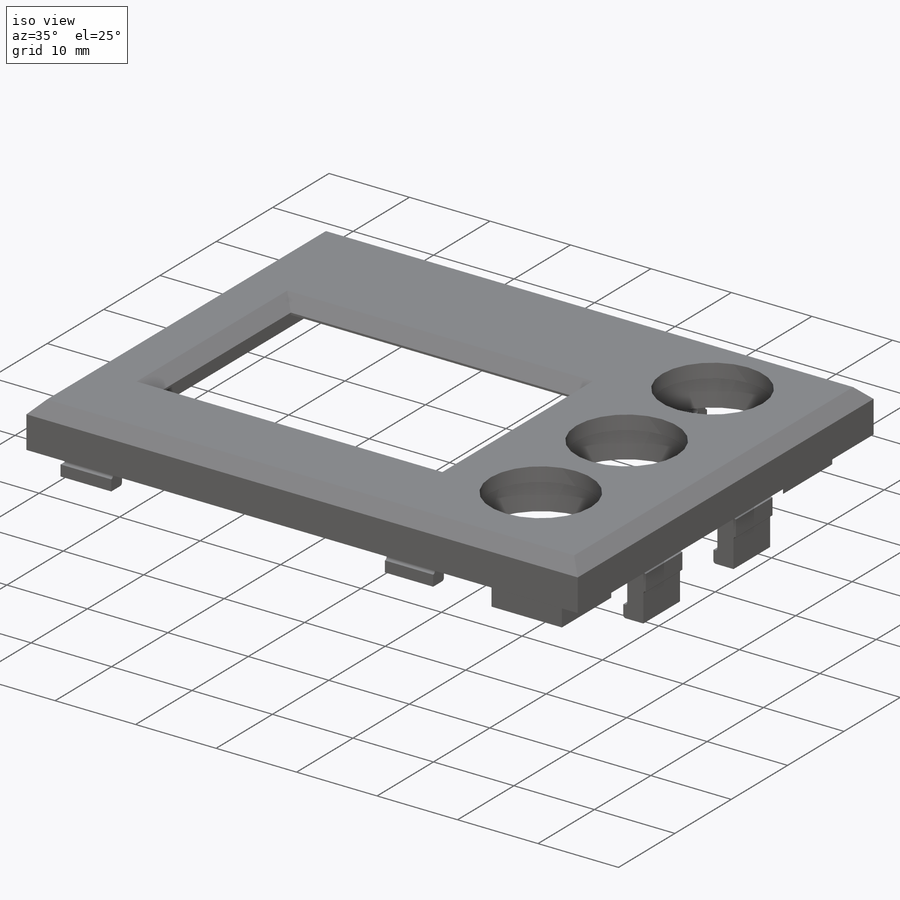
[diagram: iso view]
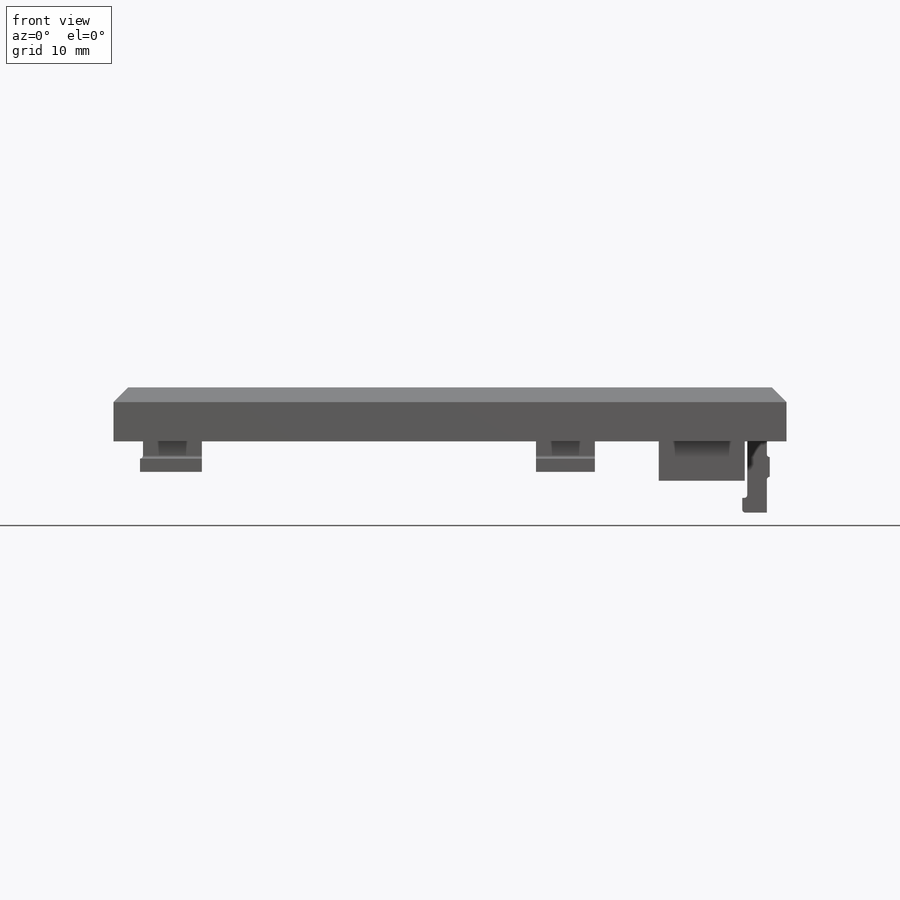
[diagram: front view]
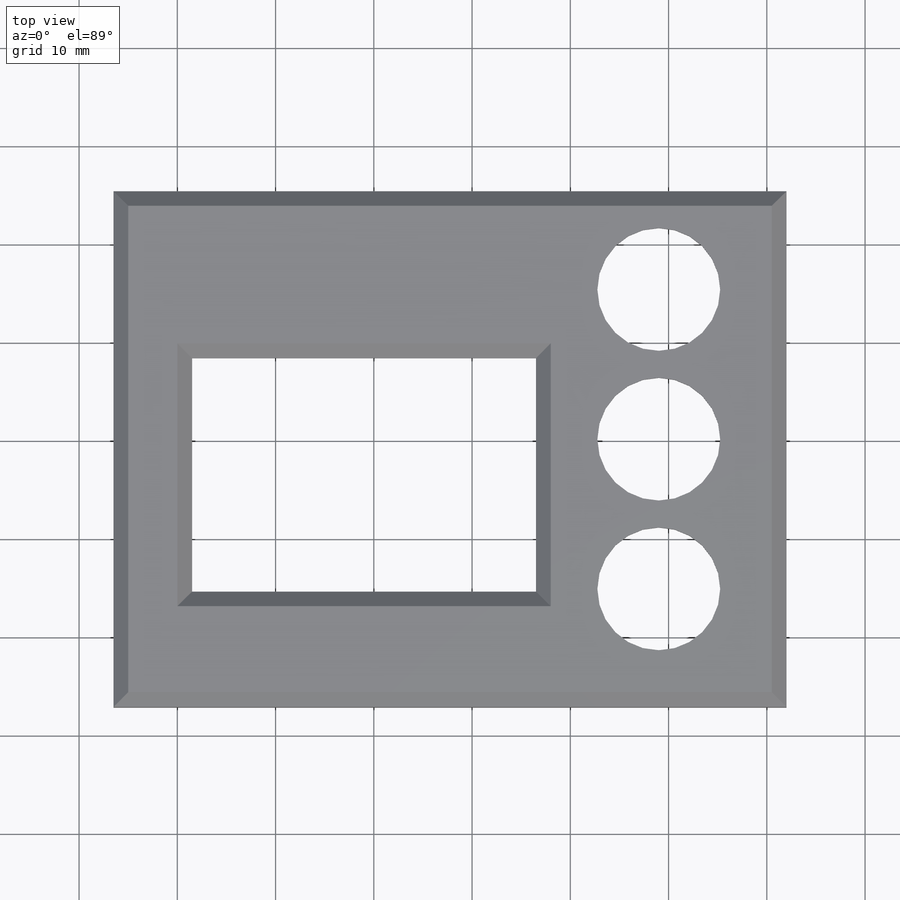
[diagram: top view]
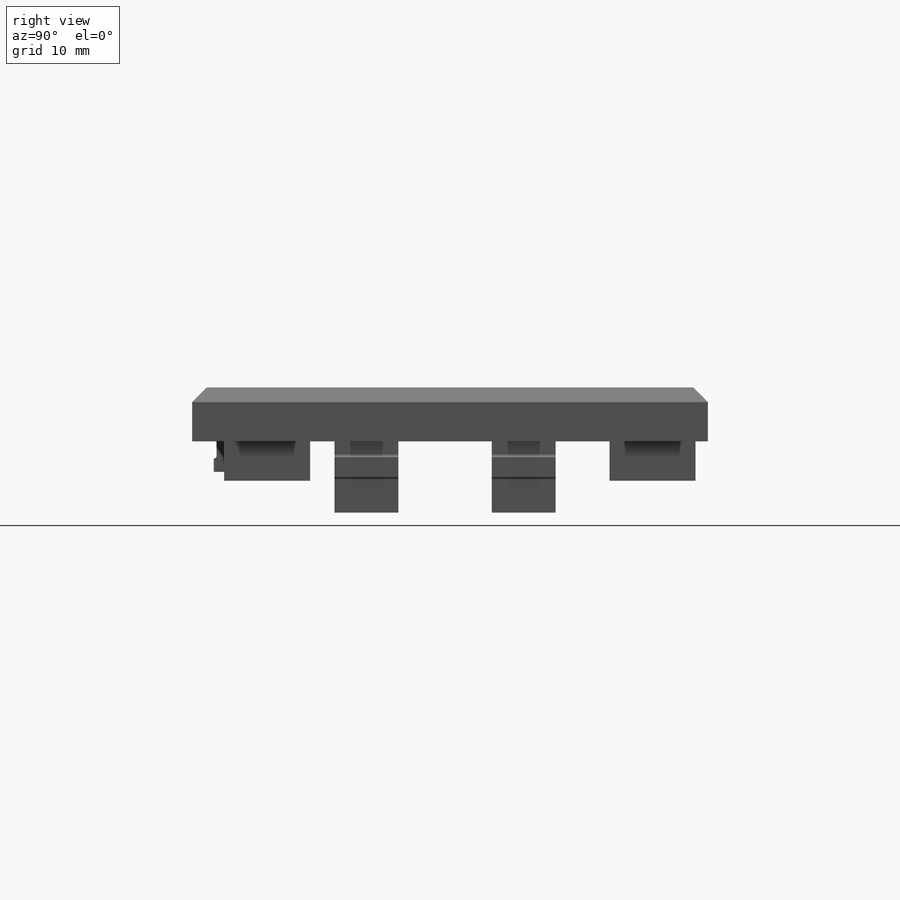
[diagram: right view]
SOLIDWORKS PART (.sldprt)
format: sldprt  version: not decoded by parser v0  size: 743,936 bytes
history: native  units: mm
features: sketch x17, extrude x14, cut_extrude x3, fillet x3, chamfer x2, material x1 (+12 scaffold rows collapsed)
feature tree (52):
  scaffold x12  (default folders/planes/origin — collapsed)
  material  "Material <not specified>"
  sketch  "Sketch1"  dims[c1.D5=7.9mm c1.D2=12.5mm c1.D3=~6.663267mm c1.D1=~48.493651mm c2.D2=~18.593421mm c2.D1=46.5mm c3.D2=16.0mm c3.D3=~61.587662mm c3.D4=~32.416194mm c4.D3=2.5mm c4.D4=2.0mm c4.D6=~35.545362mm c4.D7=~40.782195mm c5.D6=34.5mm c5.D7=41.0mm c5.D8=6.75mm c5.D9=48.5mm c5.D10=~43.763298mm c6.D9=2.0mm c6.D1=0.5mm c6.D3=15.24mm c7.D1=1.0mm]
  extrude  "Boss-Extrude1"  Depth=5.5mm
  sketch  "Sketch3"  dims[c1.D1=34.5mm c1.D2=40.5mm c2.D1=~27.323105mm c2.D2=~36.886191mm c3.D1=8.25mm c3.D2=3.0mm c3.D3=3.0mm c3.D4=2.5mm]
  extrude  "Boss-Extrude2"  Depth=1.75mm
  chamfer  "Chamfer1"  Distance=1.5mm Angle=45deg
  sketch  "Sketch4"  dims[c1.D1=~4.169892mm c1.D2=~39.610541mm c2.D1=4.0mm c2.D2=~3.319035mm c2.D3=~37.978001mm c3.D2=4.0mm c3.D3=1.0mm c3.D4=1.0mm c4.D3=3.0mm c4.D5=3.0mm c4.D6=3.0mm c4.D7=3.0mm]
  cut_extrude  "Cut-Extrude2"  Depth=2.5mm
  sketch  "Sketch5"  dims[c1.D1=~3.733124mm c1.D2=~8.099616mm c2.D1=6.0mm c2.D2=1.3mm c2.D3=3.6mm c2.D4=~6.268953mm c3.D3=34.0mm c3.D4=~3.080108mm c3.D5=~4.442726mm c4.D4=1.3mm c4.D5=~1.382266mm c4.D6=~4.962921mm c5.D5=0.5mm c5.D6=2.0mm]
  extrude  "Boss-Extrude3"  Depth=1.6mm
  sketch  "Sketch6"  dims[c1.D1=~4.320793mm c1.D2=~5.618104mm c2.D1=0.3mm c2.D2=~3.994284mm c2.D3=~5.208652mm c3.D2=~3.014809mm c3.D3=6.0mm c4.D2=0.3mm c4.D3=3.0mm c4.D4=6.0mm]
  extrude  "Boss-Extrude4"  Depth=1.5mm
  sketch  "Sketch7"  dims[D1=~3.952992mm D2=50.5mm]
  extrude  "Boss-Extrude5"  Depth=3mm
  sketch  "Sketch8"  dims[D1=4.5mm D2=67.0mm]
  extrude  "Boss-Extrude6"  Depth=2mm
  sketch  "Sketch9"  dims[c1.D1=~7.263994mm c1.D2=2.5mm c2.D1=14.5mm c2.D2=6.5mm c2.D3=~6.381453mm c2.D4=2.5mm c3.D3=15.5mm c3.D4=6.5mm c3.D5=2.0mm c3.D6=0.5mm]
  extrude  "Boss-Extrude7"  Depth=5.75mm
  sketch  "Sketch10"  dims[c1.D1=~5.896022mm c1.D2=~3.018378mm c2.D1=0.5mm c2.D2=~5.945593mm c2.D3=3.0mm]
  extrude  "Boss-Extrude8"  Depth=1.5mm
  sketch  "Sketch11"  dims[c1.D1=~2.334905mm c1.D2=6.0mm c2.D1=1.75mm c2.D2=~1.014871mm c2.D3=6.0mm]
  extrude  "Boss-Extrude9"  Depth=0.3mm
  sketch  "Sketch12"  dims[c1.D1=~1.079802mm c1.D2=6.0mm c2.D1=1.75mm c2.D2=~1.121688mm c2.D3=6.0mm]
  extrude  "Boss-Extrude10"  Depth=0.3mm
  fillet  "Fillet3"  Radius=0.3mm
  sketch  "Sketch14"  dims[c1.D1=~5.565337mm c1.D2=6.5mm c2.D1=~1.300998mm c2.D2=6.5mm c3.D1=1.6mm c3.D2=2.0mm c3.D3=~1.605466mm c3.D4=6.5mm]
  extrude  "Boss-Extrude11"  Depth=0.3mm
  sketch  "Sketch15"  dims[D1=0.0mm]
  extrude  "Boss-Extrude12"  Depth=1.5mm
  chamfer  "Chamfer2"  Distance=1.5mm Angle=45deg
  sketch  "Sketch16"  dims[D1=14.5mm D2=~15.099358mm]
  cut_extrude  "Cut-Extrude4"  Depth=3.75mm
  sketch  "Sketch17"  dims[c1.D1=~1.028514mm c1.D2=1.9mm c2.D1=~1.24288mm c2.D2=1.9mm]
  extrude  "Boss-Extrude13"  Depth=0.3mm
  fillet  "Fillet1"  Radius=0.3mm
  fillet  "Fillet4"  Radius=0.3mm
  sketch  "Sketch18"  dims[c1.D1=~15.832003mm c1.D2=~16.862041mm c2.D1=~4.20985mm c2.D2=~2.385582mm c3.D1=1.5mm c3.D2=5.0mm c3.D3=5.0mm c4.D1=1.5mm c4.D2=~9.174768mm c4.D3=~9.668117mm c5.D2=~5.520271mm c5.D3=~6.080592mm]
  extrude  "Boss-Extrude14"  Depth=4mm
  sketch  "Sketch19"  dims[D1=48.0mm]
  cut_extrude  "Cut-Extrude5"  Depth=0.5mm
decode coverage: 39 of 39 modeling features carry decoded parameters
note: ~ marks probable driven/reference dimensions
note: suppression state not decoded; provenance and decode notes live in map.json
